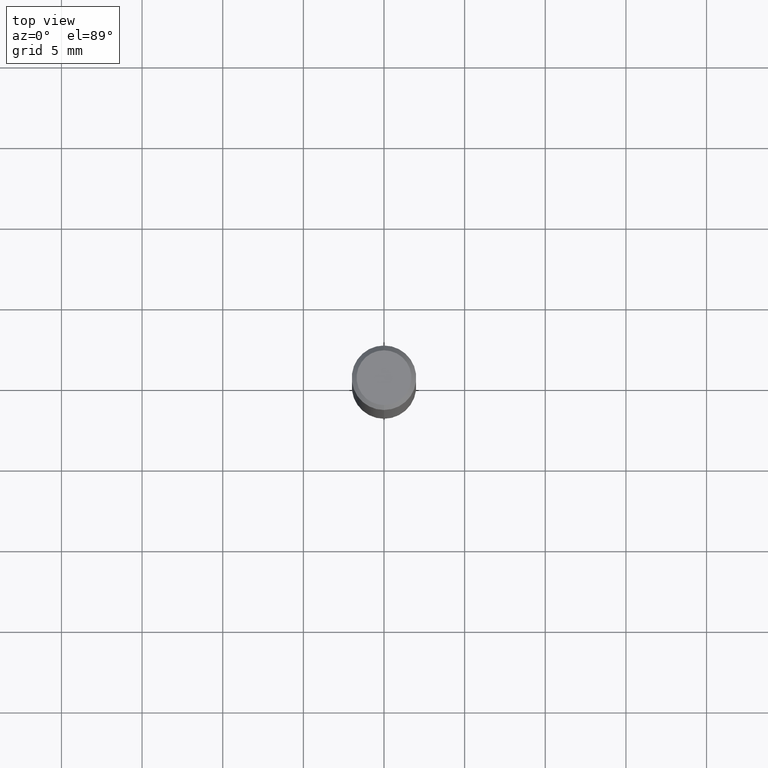
[diagram: clean part render]
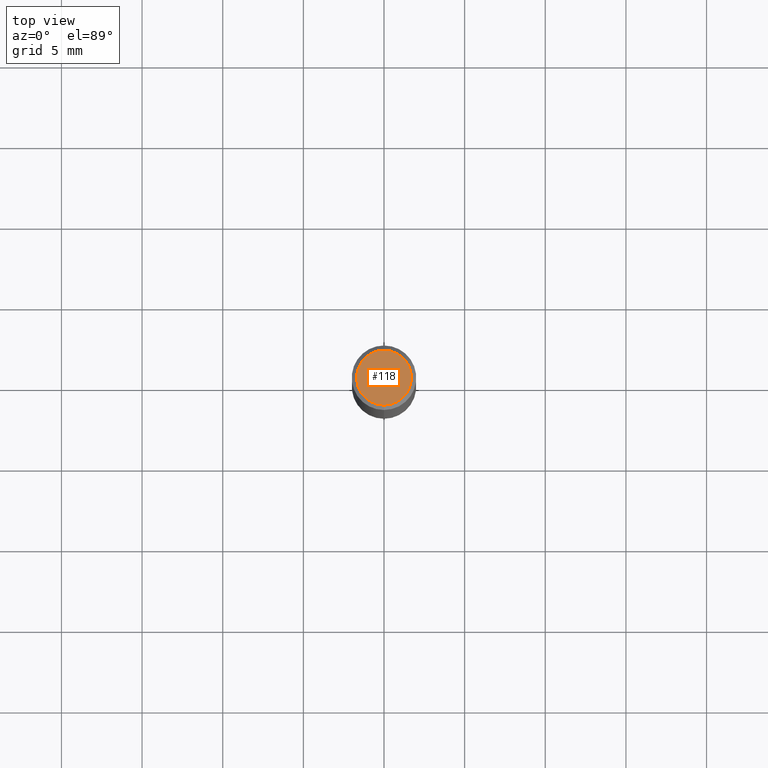
[diagram: same view with one face highlighted and labeled with its STEP entity id]
A machine part, top view. The second image highlights one B-rep face of the part: STEP entity #118.
In plain terms, the highlighted planar face has unit normal (-0, 0, 1).
Its self-contained STEP definition (entity closure, byte-faithful):
#118=ADVANCED_FACE('',(#263),#264,.T.);
#142=EDGE_CURVE('',#194,#184,#290,.T.);
#180=EDGE_CURVE('',#184,#194,#334,.T.);
#184=VERTEX_POINT('',#338);
#194=VERTEX_POINT('',#350);
#263=FACE_OUTER_BOUND('',#421,.T.);
#264=PLANE('',#422);
#290=CIRCLE('',#453,1.7);
#334=CIRCLE('',#513,1.7);
#338=CARTESIAN_POINT('',(2.08183080149804E-016,-1.7,0.0));
#350=CARTESIAN_POINT('',(0.0,1.7,0.0));
#421=EDGE_LOOP('',(#596,#597));
#422=AXIS2_PLACEMENT_3D('',#598,#599,#600);
#453=AXIS2_PLACEMENT_3D('',#629,#630,#631);
#513=AXIS2_PLACEMENT_3D('',#696,#697,#698);
#596=ORIENTED_EDGE('',*,*,#142,.F.);
#597=ORIENTED_EDGE('',*,*,#180,.F.);
#598=CARTESIAN_POINT('',(0.0,0.85,0.0));
#599=DIRECTION('',(-0.0,0.0,1.0));
#600=DIRECTION('',(0.0,-1.0,0.0));
#629=CARTESIAN_POINT('',(0.0,0.0,0.0));
#630=DIRECTION('',(0.0,0.0,-1.0));
#631=DIRECTION('',(0.0,1.0,0.0));
#696=CARTESIAN_POINT('',(0.0,0.0,0.0));
#697=DIRECTION('',(0.0,0.0,-1.0));
#698=DIRECTION('',(0.0,1.0,0.0));